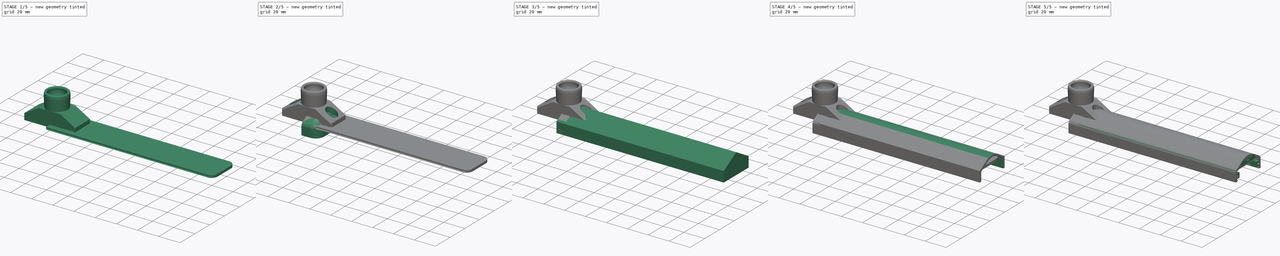
[diagram: build sequence overview — one tinted view per stage of 5, left to right]
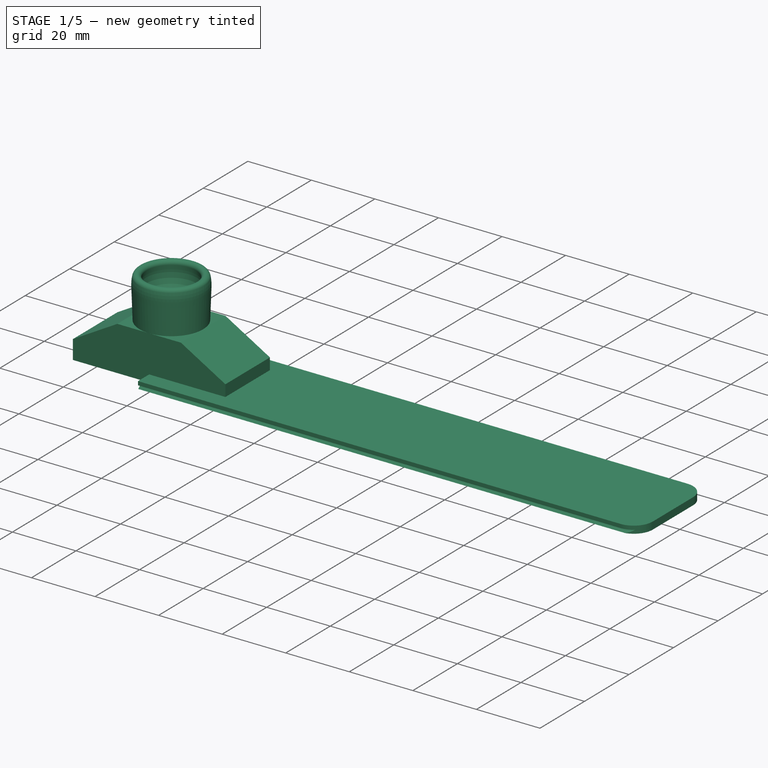
[diagram: stage 1 of 5 — iso view after this stage's code; geometry added in this stage tinted green]
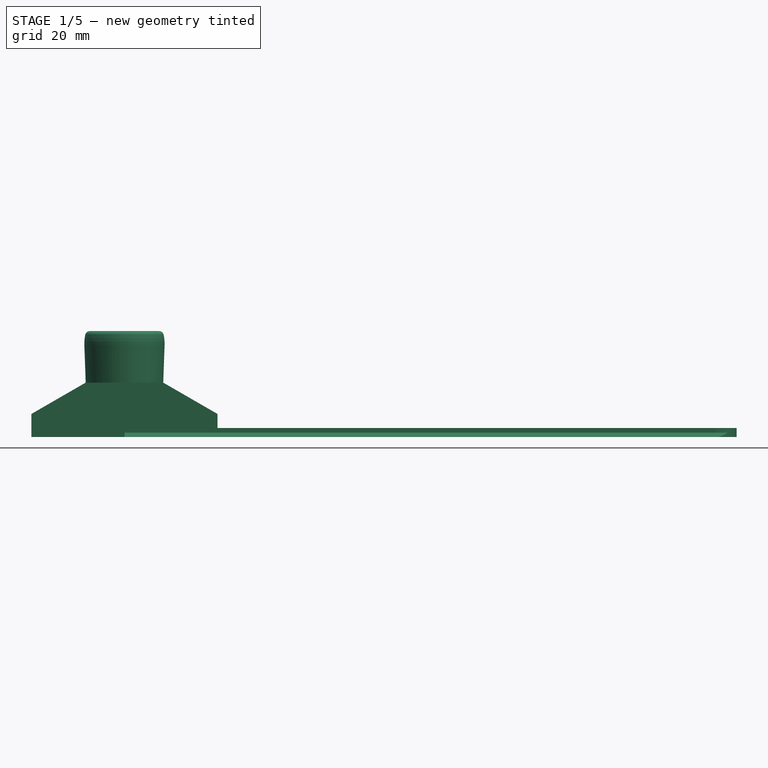
[diagram: stage 1 of 5 — front view after this stage's code; geometry added in this stage tinted green]
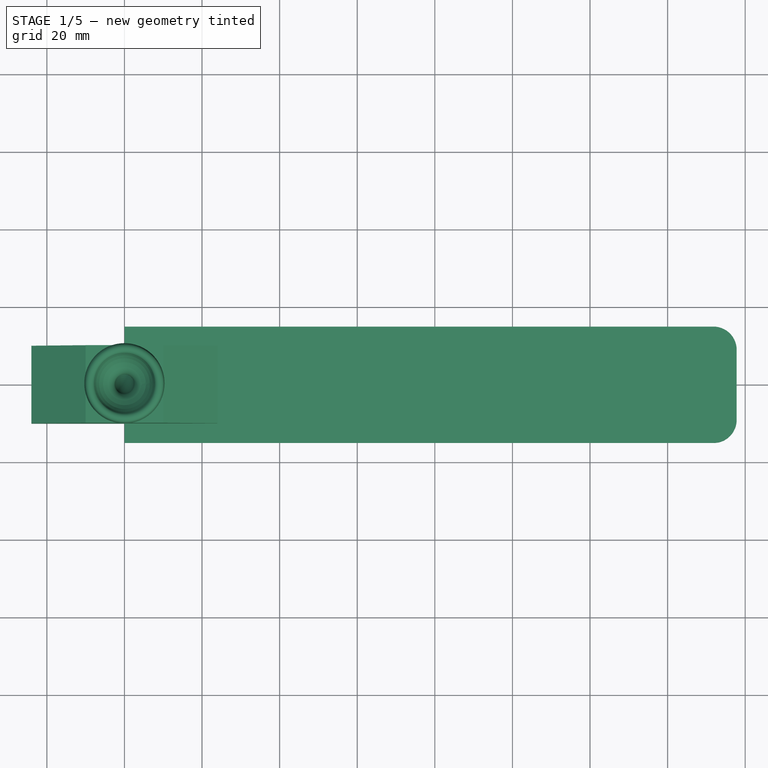
[diagram: stage 1 of 5 — top view after this stage's code; geometry added in this stage tinted green]
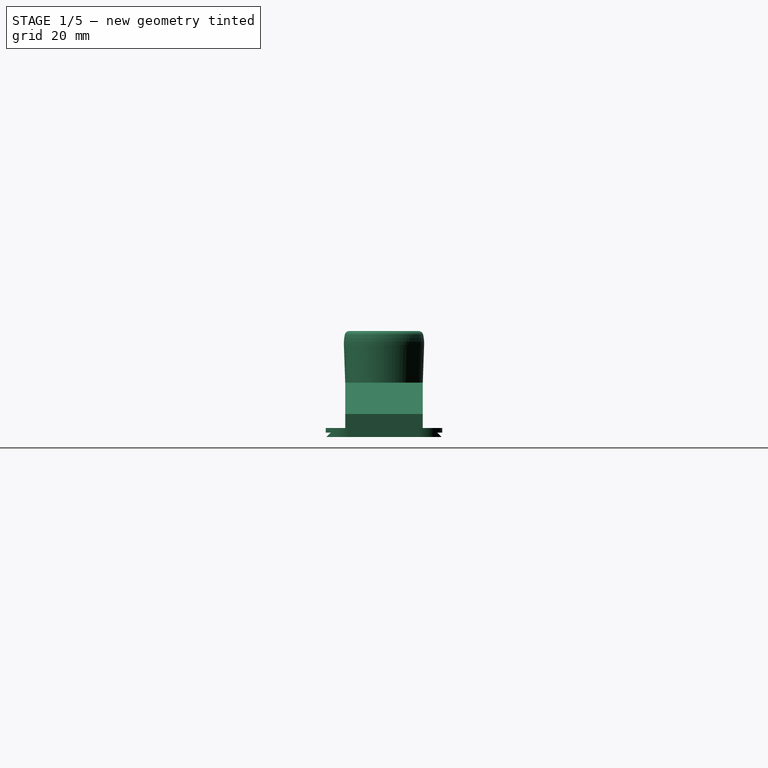
[diagram: stage 1 of 5 — right view after this stage's code; geometry added in this stage tinted green]
FCSTD DOCUMENT  (FreeCAD 0.21R33771 (Git))
Label: LED-Strip
License: Creative Commons Attribution 4.0
LicenseURL: https://creativecommons.org/licenses/by/4.0/
objects: Sketcher::SketchObject×20, PartDesign::Fillet×9, PartDesign::Pad×8, PartDesign::Pocket×5, PartDesign::Body×4, PartDesign::Hole×3, PartDesign::Mirrored×2, PartDesign::Revolution×2, PartDesign::Thickness×1, PartDesign::SubtractivePipe×1, PartDesign::Chamfer×1
note: 86 computed .brp shape members not serialized (recipe doc carries the construction recipe); baked Part::Feature solids carry a one-line shape summary decoded from their .brp

FEATURE [Sketcher::SketchObject] Sketch011
  FullyConstrained = true
  MapMode = 5
  Placement = pos=(0,0,0) rot=(1,0,0;1.5708rad)
  Support = -> [XZ_Plane002]
  sketch-geometry (6):
    g0: LineSegment StartX=-10 StartY=14 StartZ=0 EndX=10 EndY=14 EndZ=0
    g1: LineSegment StartX=10 StartY=14 StartZ=0 EndX=24 EndY=5.9171 EndZ=0
    g2: LineSegment StartX=24 StartY=5.9171 StartZ=0 EndX=24 EndY=0 EndZ=0
    g3: LineSegment StartX=24 StartY=0 StartZ=0 EndX=-24 EndY=0 EndZ=0
    g4: LineSegment StartX=-24 StartY=0 StartZ=0 EndX=-24 EndY=5.9171 EndZ=0
    g5: LineSegment StartX=-24 StartY=5.9171 StartZ=0 EndX=-10 EndY=14 EndZ=0
  constraints (17):
    c: Horizontal(g0)
    c: Coincident(g0,g1)
    c: Coincident(g1,g2)
    c: Vertical(g2)
    c: Coincident(g2,g3)
    c: PointOnObject(g3,g-1)
    c: Horizontal(g3)
    c: Coincident(g3,g4)
    c: Vertical(g4)
    c: Coincident(g4,g5)
    c: Coincident(g5,g0)
    c: Symmetric(g4,g1,g-2)
    c: Equal(g1,g5)
    c: DistanceX(g0,g0) = 20
    c: DistanceY(g3,g0) = 14
    c: Angle(g5,g1) = 2.0944
    c: DistanceX(g3,g3) = 48
FEATURE [PartDesign::Pad] Pad004
  Direction = (0,-1,2e-16)
  Length = 20
  Length2 = 10
  Midplane = true
  Placement = pos=(0,0,0) rot=(1,0,0;1.5708rad)
  Profile = -> Sketch011
  ReferenceAxis = -> Sketch011 [N_Axis]
  Refine = true
  Type = 0
FEATURE [Sketcher::SketchObject] Sketch012
  FullyConstrained = true
  MapMode = 5
  Placement = pos=(0,0,0) rot=(1,0,0;1.5708rad)
  sketch-geometry (11):
    g0: ArcOfCircle CenterX=-0.1 CenterY=24.0818 CenterZ=0 NormalX=0 NormalY=0 NormalZ=1 AngleXU=0 Radius=10.451 StartAngle=6.24773 EndAngle=6.50211
    g1: LineSegment StartX=-0.1 StartY=24.0818 StartZ=0 EndX=9.72073 EndY=27.6562 EndZ=0
    g2: ArcOfCircle CenterX=-0.1 CenterY=24.0818 CenterZ=0 NormalX=0 NormalY=0 NormalZ=1 AngleXU=0 Radius=8.05 StartAngle=5.29202 EndAngle=6.50211
    g3: LineSegment StartX=-0.1 StartY=24.0818 StartZ=0 EndX=9.5202 EndY=19.9983 EndZ=0
    g4: LineSegment StartX=7.9496 StartY=24.1618 StartZ=0 EndX=10.3496 EndY=24.1618 EndZ=0
    g5: ArcOfCircle CenterX=-0.1 CenterY=24.0818 CenterZ=0 NormalX=0 NormalY=0 NormalZ=1 AngleXU=0 Radius=10.451 StartAngle=0.218922 EndAngle=0.349066
    g6: ArcOfCircle CenterX=8.92971 CenterY=26.0908 CenterZ=0 NormalX=0 NormalY=0 NormalZ=1 AngleXU=0 Radius=1.2005 StartAngle=0.218922 EndAngle=3.36051
    g7: GeomPoint X=7.72921 Y=26.0908 Z=0
    g8: ArcOfCircle CenterX=6.5 CenterY=14 CenterZ=0 NormalX=0 NormalY=0 NormalZ=1 AngleXU=0 Radius=4 StartAngle=2.15043 EndAngle=3.14159
    g9: LineSegment StartX=2.5 StartY=14 StartZ=0 EndX=10 EndY=14 EndZ=0
    g10: LineSegment StartX=10.3444 StartY=23.7114 StartZ=0 EndX=10 EndY=14 EndZ=0
  constraints (33):
    c: Coincident(g1,g0)
    c: DistanceX(g0,g-1) = 0.1
    c: Coincident(g2,g0)
    c: Coincident(g3,g0)
    c: PointOnObject(g3,g0)
    c: Horizontal(g4)
    c: DistanceX(g4,g4) = 2.4
    c: Coincident(g5,g0)
    c: Coincident(g5,g0)
    c: Radius(g2) = 8.05
    c: Tangent(g2,g6) = 1.5708
    c: PointOnObject(g7,g6)
    c: Horizontal(g7,g6)
    c: DistanceX(g7,g4) = 0.220392
    c: Tangent(g6,g0) = -1.5708
    c: Coincident(g1,g5)
    c: DistanceY(g-1,g7) = 26.0908
    c: Tangent(g6,g1)
    c: Tangent(g2,g8) = 1.5708
    c: PointOnObject(g4,g2)
    c: DistanceY(g4,g6) = 1.929
    c: DistanceY(g0,g4) = 0.08
    c: Angle(g3,g4) = 0.401426
    c: Angle(g4,g1) = 0.349066
    c: DistanceX(g-1,g8) = 2.5
    c: Horizontal(g9)
    c: Radius(g8) = 4
    c: DistanceY(g-1,g9) = 14
    c: Coincident(g8,g9)
    c: Perpendicular(g8,g9)
    c: DistanceX(g-1,g9) = 10
    c: Tangent(g10,g0) = 1.5708
    c: Coincident(g9,g10)
FEATURE [PartDesign::Revolution] Revolution001
  Angle = 360
  Axis = (0,2e-16,1)
  Base = (0,0,0)
  BaseFeature = -> Pad004
  Placement = pos=(0,0,0) rot=(1,0,0;1.5708rad)
  Profile = -> Sketch012
  ReferenceAxis = -> Sketch012 [V_Axis]
  Refine = true
  Reversed = true
FEATURE [Sketcher::SketchObject] Sketch013
  AttachmentOffset = pos=(0,0,14) rot=(0,0,1;0rad)
  FullyConstrained = true
  MapMode = 5
  Placement = pos=(0,0,14) rot=(0,0,1;0rad)
  Support = -> [XY_Plane002]
  sketch-geometry (1):
    g0: Circle CenterX=0 CenterY=0 CenterZ=0 NormalX=0 NormalY=0 NormalZ=1 AngleXU=0 Radius=2.5
  constraints (2):
    c: Coincident(g0,g-1)
    c: Diameter(g0) = 5
FEATURE [Sketcher::SketchObject] Sketch014
  FullyConstrained = true
  MapMode = 5
  Placement = pos=(0,0,0) rot=(0.57735,0.57735,0.57735;2.0944rad)
  Support = -> [YZ_Plane002]
  sketch-geometry (1):
    g0: ArcOfCircle CenterX=11.5 CenterY=14 CenterZ=0 NormalX=0 NormalY=0 NormalZ=1 AngleXU=0 Radius=11.5 StartAngle=3.14159 EndAngle=4.71239
  constraints (6):
    c: PointOnObject(g0,g-2)
    c: DistanceY(g-1,g0) = 14
    c: Horizontal(g0,g0)
    c: Vertical(g0,g0)
    c: Radius(g0) = 11.5
    c: DistanceY(g-1,g0) = 2.5
FEATURE [PartDesign::SubtractivePipe] SubtractivePipe
  AuxilleryCurvelinear = true
  AuxillerySpineTangent = false
  BaseFeature = -> Revolution001
  Binormal = (0,0,0)
  Mode = 0
  Placement = pos=(0,0,0) rot=(1,0,0;1.5708rad)
  Profile = -> Sketch013
  Refine = true
  Spine = -> Sketch014
  SpineTangent = false
  Transformation = 0
  Transition = 0
FEATURE [PartDesign::Body] Body002  label="Foot"
  Group = -> [Sketch011,Pad004,Sketch012,Revolution001,Sketch013,Sketch014,SubtractivePipe,Sketch015,Hole002,Chamfer]
  Origin = -> Origin002
  Tip = -> Chamfer
FEATURE [Sketcher::SketchObject] Sketch019
  FullyConstrained = true
  MapMode = 5
  Support = -> [XY_Plane003]
  sketch-geometry (7):
    g0: LineSegment StartX=0 StartY=15 StartZ=0 EndX=151.8 EndY=15 EndZ=0
    g1: ArcOfCircle CenterX=151.8 CenterY=9 CenterZ=0 NormalX=0 NormalY=0 NormalZ=1 AngleXU=0 Radius=6 StartAngle=2e-16 EndAngle=1.5708
    g2: LineSegment StartX=157.8 StartY=9 StartZ=0 EndX=157.8 EndY=-9 EndZ=0
    g3: ArcOfCircle CenterX=151.8 CenterY=-9 CenterZ=0 NormalX=0 NormalY=0 NormalZ=1 AngleXU=0 Radius=6 StartAngle=4.71239 EndAngle=6.28319
    g4: LineSegment StartX=151.8 StartY=-15 StartZ=0 EndX=0 EndY=-15 EndZ=0
    g5: LineSegment StartX=0 StartY=-15 StartZ=0 EndX=0 EndY=15 EndZ=0
    g6: GeomPoint X=157.8 Y=-15 Z=0
  constraints (17):
    c: Tangent(g0,g1) = 1.5708
    c: Tangent(g1,g2) = 1.5708
    c: Tangent(g2,g3) = 1.5708
    c: Tangent(g3,g4) = 1.5708
    c: Horizontal(g0)
    c: Horizontal(g4)
    c: Vertical(g2)
    c: Equal(g1,g3)
    c: PointOnObject(g6,g2)
    c: PointOnObject(g6,g4)
    c: Coincident(g5,g0)
    c: Coincident(g4,g5)
    c: Symmetric(g4,g0,g-1)
    c: PointOnObject(g-1,g5)
    c: DistanceX(g0,g1) = 157.8
    c: Radius(g1) = 6
    c: DistanceY(g5,g5) = 30
FEATURE [PartDesign::Pad] Pad008
  Direction = (0,0,1)
  Length = 2.3
  Length2 = 10
  Profile = -> Sketch019
  ReferenceAxis = -> Sketch019 [N_Axis]
  Refine = true
  Type = 0
FEATURE [Sketcher::SketchObject] Sketch020
  FullyConstrained = true
  MapMode = 5
  Placement = pos=(0,0,0) rot=(0.57735,0.57735,0.57735;2.0944rad)
  Support = -> [YZ_Plane003]
  sketch-geometry (5):
    g0: LineSegment StartX=-15 StartY=-0.141421 StartZ=0 EndX=-13.7586 EndY=1.1 EndZ=0
    g1: LineSegment StartX=-13.7586 StartY=1.1 StartZ=0 EndX=-15 EndY=1.1 EndZ=0
    g2: LineSegment StartX=-15 StartY=1.1 StartZ=0 EndX=-15 EndY=-0.141421 EndZ=0
    g3: LineSegment StartX=-15 StartY=0 StartZ=0 EndX=-13.9 EndY=1.1 EndZ=0
    g4: LineSegment StartX=-13.9 StartY=1.1 StartZ=0 EndX=-13.8293 EndY=1.02929 EndZ=0
  constraints (16):
    c: Coincident(g0,g1)
    c: Coincident(g1,g2)
    c: Coincident(g2,g0)
    c: Horizontal(g1)
    c: Vertical(g2)
    c: Equal(g2,g1)
    c: DistanceX(g0,g-1) = 15
    c: PointOnObject(g3,g2)
    c: PointOnObject(g3,g1)
    c: PointOnObject(g3,g-1)
    c: Parallel(g0,g3)
    c: Coincident(g4,g3)
    c: PointOnObject(g4,g0)
    c: Perpendicular(g4,g3)
    c: Distance(g4) = 0.1
    c: DistanceY(g3,g1) = 1.1
FEATURE [PartDesign::Pocket] Pocket004
  BaseFeature = -> Pad008
  Direction = (-1,2e-16,-3e-16)
  Length = 5
  Length2 = 5
  Profile = -> Sketch020
  ReferenceAxis = -> Sketch020 [N_Axis]
  Refine = true
  Reversed = true
  Type = 1
FEATURE [PartDesign::Mirrored] Mirrored001
  BaseFeature = -> Pocket004
  MirrorPlane = -> Sketch020 [V_Axis]
  Originals = -> [Pocket004]
  Refine = true
FEATURE [PartDesign::Body] Body003  label="Diffuser"
  Group = -> [Sketch019,Pad008,Sketch020,Pocket004,Mirrored001]
  Origin = -> Origin003
  Placement = pos=(0,0,-8) rot=(0,0,1;3.14159rad)
  Tip = -> Mirrored001
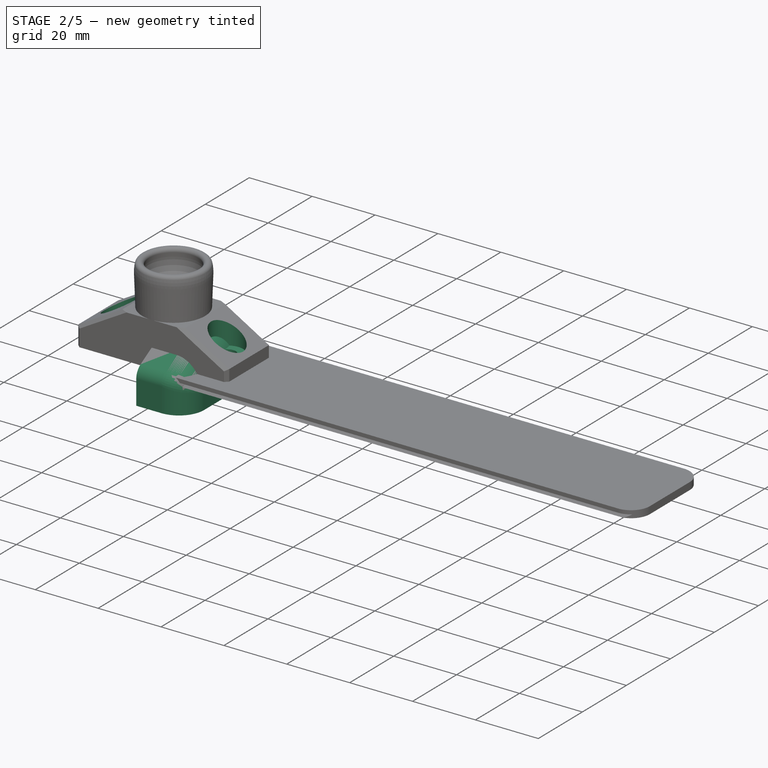
[diagram: stage 2 of 5 — iso view after this stage's code; geometry added in this stage tinted green]
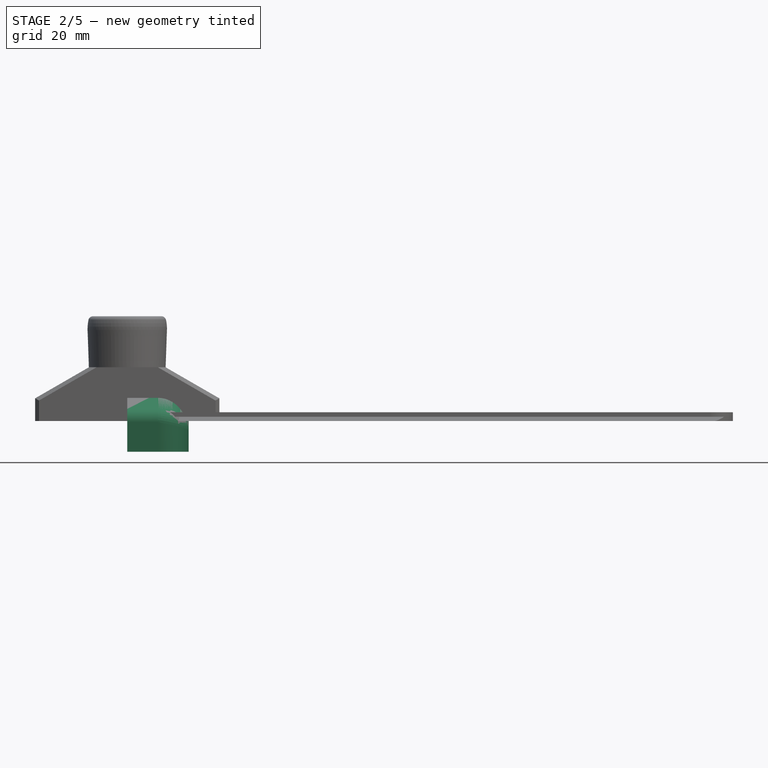
[diagram: stage 2 of 5 — front view after this stage's code; geometry added in this stage tinted green]
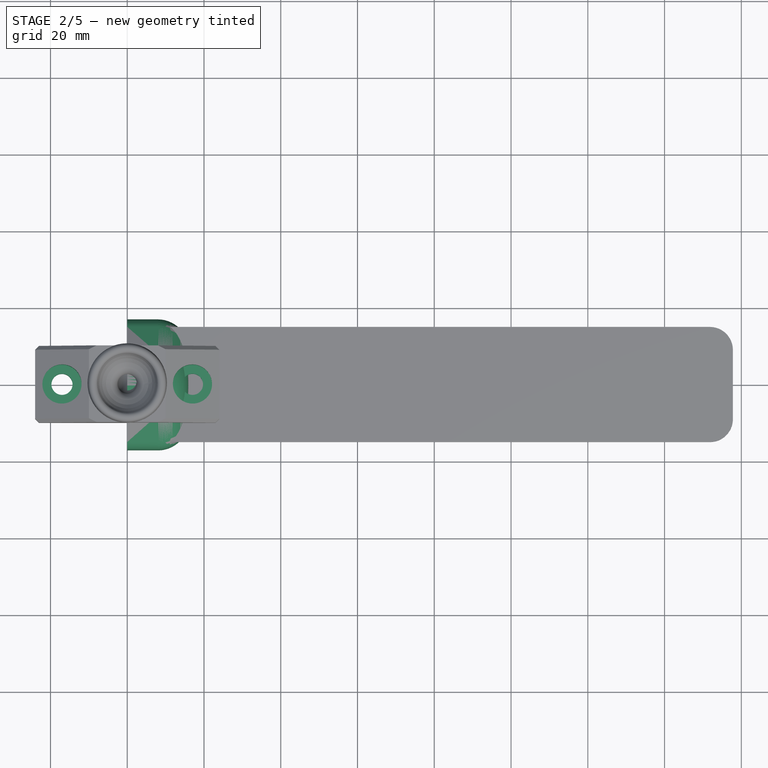
[diagram: stage 2 of 5 — top view after this stage's code; geometry added in this stage tinted green]
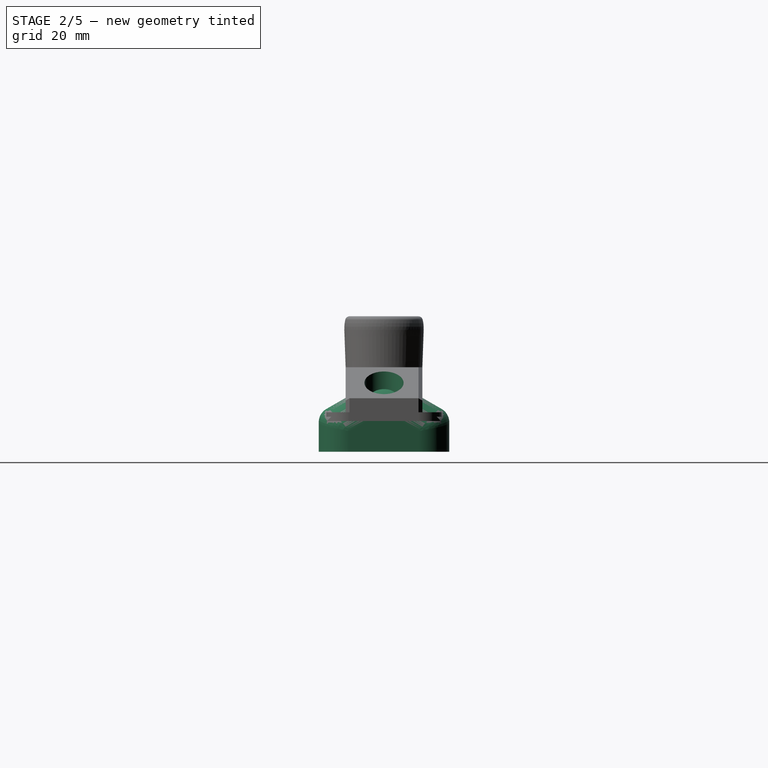
[diagram: stage 2 of 5 — right view after this stage's code; geometry added in this stage tinted green]
FEATURE [PartDesign::Body] Body  label="LED-Shade"
  Group = -> [Sketch,Pad,Sketch001,Pocket,Thickness,Fillet,Fillet001,Fillet002,Fillet003,Fillet004,Fillet005,Sketch002,Pad001,Mirrored,Sketch003,Pad002,Sketch004,Sketch005,Pocket001,Hole]
  Origin = -> Origin
  Placement = pos=(-160,0,0) rot=(0,0,1;0rad)
  Tip = -> Hole
FEATURE [Sketcher::SketchObject] Sketch006
  FullyConstrained = true
  MapMode = 5
  Placement = pos=(0,0,0) rot=(0.57735,0.57735,0.57735;2.0944rad)
  Support = -> [YZ_Plane001]
  sketch-geometry (8):
    g0: LineSegment StartX=-17 StartY=-8 StartZ=0 EndX=-17 EndY=-0.309147 EndZ=0
    g1: ArcOfCircle CenterX=-13 CenterY=-0.309147 CenterZ=0 NormalX=0 NormalY=0 NormalZ=1 AngleXU=0 Radius=4 StartAngle=2.0944 EndAngle=3.14159
    g2: LineSegment StartX=-15 StartY=3.15495 StartZ=0 EndX=-8 EndY=7.19641 EndZ=0
    g3: ArcOfCircle CenterX=0 CenterY=-6.66 CenterZ=0 NormalX=0 NormalY=0 NormalZ=1 AngleXU=0 Radius=16 StartAngle=1.0472 EndAngle=2.0944
    g4: LineSegment StartX=8 StartY=7.19641 StartZ=0 EndX=15 EndY=3.15495 EndZ=0
    g5: ArcOfCircle CenterX=13 CenterY=-0.309147 CenterZ=0 NormalX=0 NormalY=0 NormalZ=1 AngleXU=0 Radius=4 StartAngle=1e-16 EndAngle=1.0472
    g6: LineSegment StartX=17 StartY=-0.309147 StartZ=0 EndX=17 EndY=-8 EndZ=0
    g7: LineSegment StartX=17 StartY=-8 StartZ=0 EndX=-17 EndY=-8 EndZ=0
  constraints (20):
    c: Vertical(g0)
    c: Tangent(g0,g1) = 1.5708
    c: Tangent(g1,g2) = 1.5708
    c: Tangent(g2,g3) = 1.5708
    c: Tangent(g3,g4) = 1.5708
    c: Tangent(g4,g5) = 1.5708
    c: Tangent(g5,g6) = 1.5708
    c: Coincident(g6,g7)
    c: Coincident(g7,g0)
    c: Vertical(g6)
    c: Symmetric(g6,g0,g-2)
    c: Radius(g3) = 16
    c: PointOnObject(g3,g-2)
    c: Equal(g2,g4)
    c: Angle(g2,g4) = 2.0944
    c: Equal(g5,g1)
    c: Radius(g5) = 4
    c: DistanceY(g0,g-1) = 8
    c: DistanceX(g7,g7) = 34
    c: DistanceY(g0,g3) = 1.34
FEATURE [PartDesign::Pad] Pad003
  Direction = (1,-2e-16,3e-16)
  Length = 16
  Length2 = 10
  Placement = pos=(0,0,0) rot=(1,1,1;2.0944rad)
  Profile = -> Sketch006
  ReferenceAxis = -> Sketch006 [N_Axis]
  Refine = true
  Type = 0
FEATURE [Sketcher::SketchObject] Sketch007
  FullyConstrained = true
  MapMode = 5
  Placement = pos=(0,0,0) rot=(0.57735,0.57735,0.57735;2.0944rad)
  Support = -> [YZ_Plane001]
  sketch-geometry (7):
    g0: LineSegment StartX=10.5 StartY=-8 StartZ=0 EndX=-10.5 EndY=-8 EndZ=0
    g1: Circle CenterX=-14 CenterY=-3.3 CenterZ=0 NormalX=0 NormalY=0 NormalZ=1 AngleXU=0 Radius=3.05
    g2: Circle CenterX=14 CenterY=-3.3 CenterZ=0 NormalX=0 NormalY=0 NormalZ=1 AngleXU=0 Radius=3.05
    g3: Circle CenterX=0 CenterY=5.5 CenterZ=0 NormalX=0 NormalY=0 NormalZ=1 AngleXU=0 Radius=3.05
    g4: LineSegment StartX=-10.5 StartY=-8 StartZ=0 EndX=-10.5 EndY=2 EndZ=0
    g5: LineSegment StartX=-10.5 StartY=2 StartZ=0 EndX=10.5 EndY=2 EndZ=0
    g6: LineSegment StartX=10.5 StartY=2 StartZ=0 EndX=10.5 EndY=-8 EndZ=0
  constraints (19):
    c: Symmetric(g0,g0,g-2)
    c: DistanceY(g0,g-1) = 8
    c: DistanceX(g0,g0) = 21
    c: DistanceX(g1,g2) = 28
    c: Equal(g1,g2)
    c: Diameter(g1) = 6.1
    c: Symmetric(g1,g2,g-2)
    c: DistanceY(g2,g-1) = 3.3
    c: PointOnObject(g3,g-2)
    c: DistanceY(g-1,g3) = 5.5
    c: Equal(g2,g3)
    c: Coincident(g0,g4)
    c: Coincident(g4,g5)
    c: Horizontal(g5)
    c: Coincident(g5,g6)
    c: Coincident(g6,g0)
    c: Vertical(g6)
    c: Vertical(g4)
    c: DistanceY(g4,g4) = 10
FEATURE [PartDesign::Pocket] Pocket002
  BaseFeature = -> Pad003
  Direction = (-1,2e-16,-3e-16)
  Length = 13
  Length2 = 5
  Placement = pos=(0,0,0) rot=(1,1,1;2.0944rad)
  Profile = -> Sketch007
  ReferenceAxis = -> Sketch007 [N_Axis]
  Refine = true
  Reversed = true
  Type = 0
FEATURE [Sketcher::SketchObject] Sketch008
  AttachmentOffset = pos=(0,0,16) rot=(0,0,1;0rad)
  FullyConstrained = true
  MapMode = 5
  Placement = pos=(16,-3.6e-15,3.6e-15) rot=(0.57735,0.57735,0.57735;2.0944rad)
  Support = -> [YZ_Plane001]
  sketch-geometry (3):
    g0: Circle CenterX=-14 CenterY=-3.3 CenterZ=0 NormalX=0 NormalY=0 NormalZ=1 AngleXU=0 Radius=2.8
    g1: Circle CenterX=14 CenterY=-3.3 CenterZ=0 NormalX=0 NormalY=0 NormalZ=1 AngleXU=0 Radius=2.8
    g2: Circle CenterX=0 CenterY=5.5 CenterZ=0 NormalX=0 NormalY=0 NormalZ=1 AngleXU=0 Radius=2.8
  constraints (8):
    c: DistanceX(g0,g1) = 28
    c: Equal(g0,g1)
    c: Diameter(g0) = 5.6
    c: Symmetric(g0,g1,g-2)
    c: DistanceY(g1,g-1) = 3.3
    c: PointOnObject(g2,g-2)
    c: DistanceY(g-1,g2) = 5.5
    c: Equal(g1,g2)
FEATURE [PartDesign::Fillet] Fillet006
  Base = -> Pocket002 [Edge28,Edge32]
  BaseFeature = -> Pocket002
  Placement = pos=(0,0,0) rot=(1,1,1;2.0944rad)
  Radius = 3
  Refine = true
  SupportTransform = false
  UseAllEdges = false
FEATURE [PartDesign::Fillet] Fillet007
  Base = -> Fillet006 [Edge17]
  BaseFeature = -> Fillet006
  Placement = pos=(0,0,0) rot=(1,1,1;2.0944rad)
  Radius = 6
  Refine = true
  SupportTransform = false
  UseAllEdges = false
FEATURE [PartDesign::Fillet] Fillet008
  Base = -> Fillet007 [Edge36]
  BaseFeature = -> Fillet007
  Placement = pos=(0,0,0) rot=(1,1,1;2.0944rad)
  Radius = 8
  Refine = true
  SupportTransform = false
  UseAllEdges = false
FEATURE [Sketcher::SketchObject] Sketch015
  AttachmentOffset = pos=(0,0,14) rot=(0,0,1;0rad)
  FullyConstrained = true
  MapMode = 5
  Placement = pos=(0,0,14) rot=(0,0,1;0rad)
  Support = -> [XY_Plane002]
  sketch-geometry (2):
    g0: Circle CenterX=-17 CenterY=0 CenterZ=0 NormalX=0 NormalY=0 NormalZ=1 AngleXU=0 Radius=1.5
    g1: Circle CenterX=17 CenterY=0 CenterZ=0 NormalX=0 NormalY=0 NormalZ=1 AngleXU=0 Radius=1.5
  constraints (5):
    c: PointOnObject(g0,g-1)
    c: DistanceX(g0,g-1) = 17
    c: Diameter(g0) = 3
    c: Equal(g0,g1)
    c: Symmetric(g0,g1,g-2)
FEATURE [PartDesign::Hole] Hole002
  BaseFeature = -> SubtractivePipe
  CustomThreadClearance = 0
  Depth = 25
  DepthType = 0
  Diameter = 5.5
  DrillForDepth = false
  DrillPoint = 1
  DrillPointAngle = 118
  HoleCutCountersinkAngle = 90
  HoleCutCustomValues = false
  HoleCutDepth = 9
  HoleCutDiameter = 10.2
  HoleCutType = 1
  ModelThread = false
  Placement = pos=(0,0,0) rot=(1,0,0;1.5708rad)
  Profile = -> Sketch015
  Refine = true
  Tapered = false
  TaperedAngle = 90
  ThreadClass = 0
  ThreadDepth = 25
  ThreadDepthType = 0
  ThreadDirection = 0
  ThreadFit = 0
  ThreadSize = 13
  ThreadType = 1
  Threaded = false
  UseCustomThreadClearance = false
FEATURE [PartDesign::Body] Body001  label="ConnPiece"
  Group = -> [Sketch006,Pad003,Sketch007,Pocket002,Sketch008,Fillet006,Fillet007,Fillet008,Hole001,Sketch009,Revolution,Sketch010,Pocket003,Sketch017,Pad006,Sketch018,Pad007]
  Origin = -> Origin001
  Tip = -> Pad007
FEATURE [PartDesign::Chamfer] Chamfer
  Angle = 45
  Base = -> Hole002 [Edge4,Edge17,Edge6,Edge22,Edge7,Edge25,Edge31,Edge9]
  BaseFeature = -> Hole002
  ChamferType = 0
  FlipDirection = false
  Placement = pos=(0,0,0) rot=(1,0,0;1.5708rad)
  Refine = true
  Size = 1
  Size2 = 1
  SupportTransform = false
  UseAllEdges = false
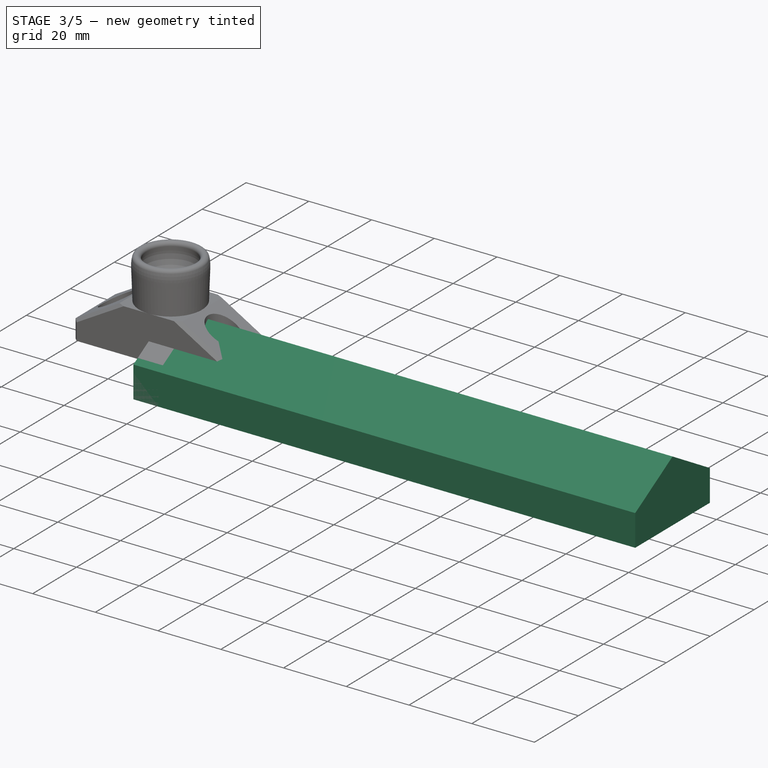
[diagram: stage 3 of 5 — iso view after this stage's code; geometry added in this stage tinted green]
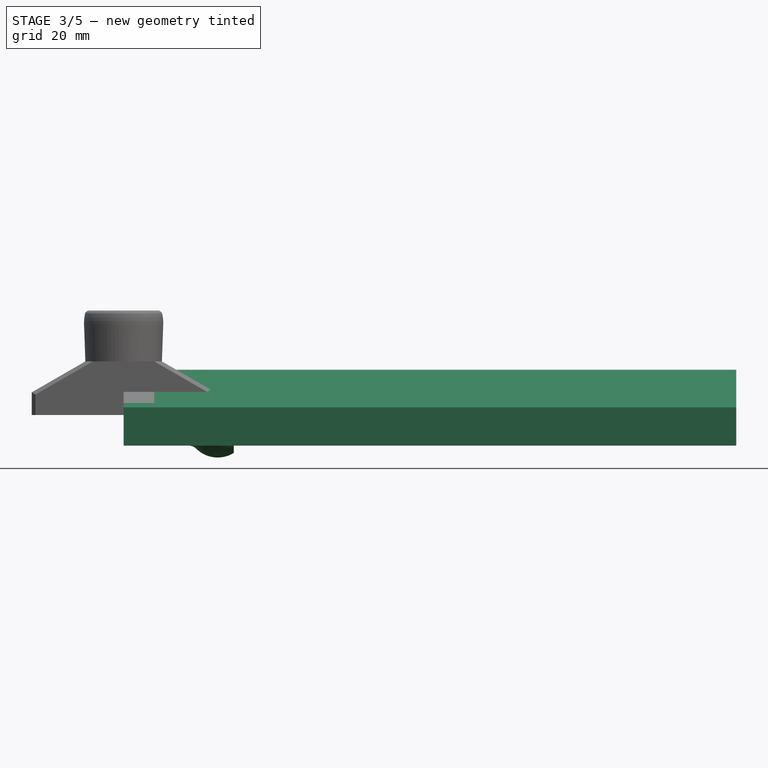
[diagram: stage 3 of 5 — front view after this stage's code; geometry added in this stage tinted green]
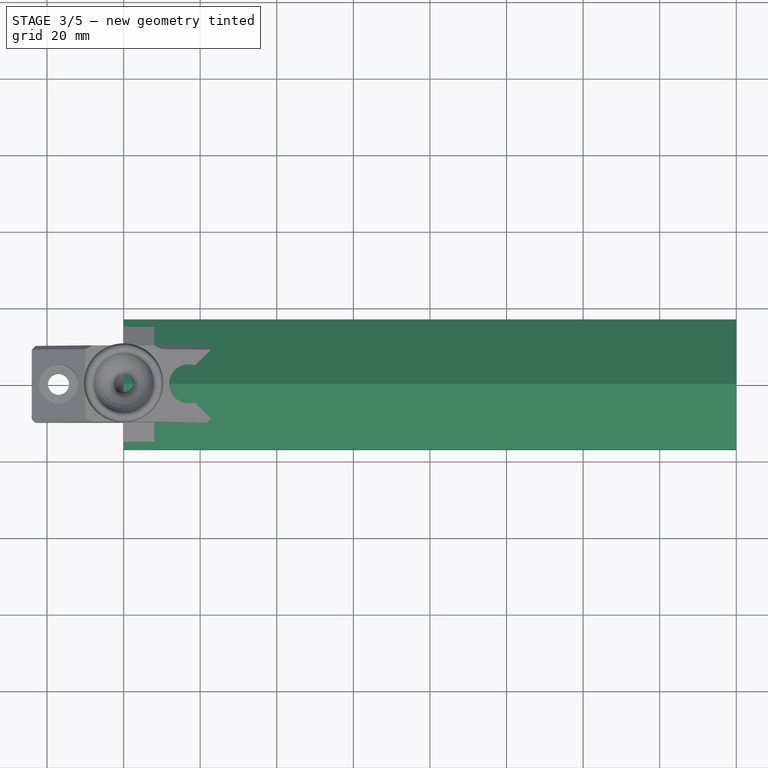
[diagram: stage 3 of 5 — top view after this stage's code; geometry added in this stage tinted green]
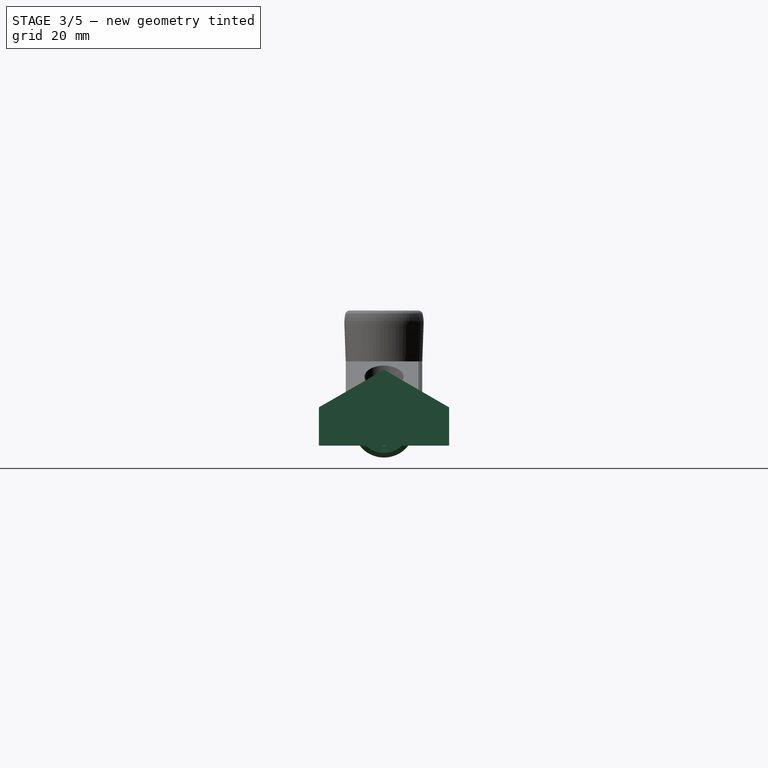
[diagram: stage 3 of 5 — right view after this stage's code; geometry added in this stage tinted green]
FEATURE [Sketcher::SketchObject] Sketch
  FullyConstrained = true
  MapMode = 5
  Placement = pos=(0,0,0) rot=(0.57735,0.57735,0.57735;2.0944rad)
  Support = -> [YZ_Plane]
  sketch-geometry (9):
    g0: LineSegment StartX=-17 StartY=-8 StartZ=0 EndX=-17 EndY=2 EndZ=0
    g1: LineSegment StartX=-17 StartY=2 StartZ=0 EndX=0 EndY=11.815 EndZ=0
    g2: LineSegment StartX=0 StartY=11.815 StartZ=0 EndX=17 EndY=2 EndZ=0
    g3: LineSegment StartX=17 StartY=2 StartZ=0 EndX=17 EndY=-8 EndZ=0
    g4: LineSegment StartX=17 StartY=-8 StartZ=0 EndX=-17 EndY=-8 EndZ=0
    g5: LineSegment StartX=-15 StartY=1 StartZ=0 EndX=15 EndY=1 EndZ=0
    g6: LineSegment StartX=15 StartY=1 StartZ=0 EndX=15 EndY=-1 EndZ=0
    g7: LineSegment StartX=15 StartY=-1 StartZ=0 EndX=-15 EndY=-1 EndZ=0
    g8: LineSegment StartX=-15 StartY=-1 StartZ=0 EndX=-15 EndY=1 EndZ=0
  constraints (25):
    c: Vertical(g0)
    c: Coincident(g0,g1)
    c: Coincident(g2,g3)
    c: Vertical(g3)
    c: Coincident(g3,g4)
    c: Coincident(g4,g0)
    c: Symmetric(g3,g0,g-2)
    c: Equal(g3,g0)
    c: Coincident(g5,g6)
    c: Coincident(g6,g7)
    c: Coincident(g7,g8)
    c: Coincident(g8,g5)
    c: Horizontal(g5)
    c: Vertical(g6)
    c: Vertical(g8)
    c: DistanceX(g7,g7) = 30
    c: DistanceY(g8,g8) = 2
    c: Symmetric(g7,g5,g-1)
    c: DistanceX(g4,g4) = 34
    c: DistanceY(g0,g-1) = 8
    c: Angle(g1,g2) = 2.0944
    c: DistanceY(g0,g0) = 10
    c: Coincident(g1,g2)
    c: PointOnObject(g1,g-2)
    c: Horizontal(g7)
FEATURE [PartDesign::Pad] Pad
  Direction = (1,-2e-16,3e-16)
  Length = 160
  Length2 = 10
  Placement = pos=(0,0,0) rot=(1,1,1;2.0944rad)
  Profile = -> Sketch
  ReferenceAxis = -> Sketch [N_Axis]
  Refine = true
  Type = 0
FEATURE [PartDesign::Hole] Hole001
  BaseFeature = -> Fillet008
  CustomThreadClearance = 0
  Depth = 83.5738
  DepthType = 1
  Diameter = 3.4
  DrillForDepth = false
  DrillPoint = 1
  DrillPointAngle = 118
  HoleCutCountersinkAngle = 90
  HoleCutCustomValues = false
  HoleCutDepth = 8
  HoleCutDiameter = 5.6
  HoleCutType = 1
  ModelThread = false
  Placement = pos=(0,0,0) rot=(1,1,1;2.0944rad)
  Profile = -> Sketch008
  Refine = true
  Tapered = false
  TaperedAngle = 90
  ThreadClass = 0
  ThreadDepth = 83.5738
  ThreadDepthType = 0
  ThreadDirection = 0
  ThreadFit = 0
  ThreadSize = 0
  ThreadType = 0
  Threaded = false
  UseCustomThreadClearance = false
FEATURE [Sketcher::SketchObject] Sketch009
  AttachmentOffset = pos=(0,0,-3.1) rot=(0,0,1;0rad)
  FullyConstrained = true
  MapMode = 5
  Placement = pos=(0,0,-3.1) rot=(0,0,1;0rad)
  Support = -> [XY_Plane001]
  sketch-geometry (10):
    g0: LineSegment StartX=15 StartY=2.5 StartZ=0 EndX=17.5083 EndY=2.5 EndZ=0
    g1: LineSegment StartX=15 StartY=4.9 StartZ=0 EndX=17 EndY=4.9 EndZ=0
    g2: ArcOfCircle CenterX=17 CenterY=7.7 CenterZ=0 NormalX=0 NormalY=0 NormalZ=1 AngleXU=0 Radius=2.8 StartAngle=4.71239 EndAngle=5.48947
    g3: ArcOfCircle CenterX=17.5083 CenterY=6.5 CenterZ=0 NormalX=0 NormalY=0 NormalZ=1 AngleXU=0 Radius=4 StartAngle=4.71239 EndAngle=5.53939
    g4: ArcOfCircle CenterX=24.573 CenterY=0 CenterZ=0 NormalX=0 NormalY=0 NormalZ=1 AngleXU=0 Radius=8 StartAngle=1.01808 EndAngle=2.34788
    g5: ArcOfCircle CenterX=24.573 CenterY=0 CenterZ=0 NormalX=0 NormalY=0 NormalZ=1 AngleXU=0 Radius=5.6 StartAngle=1.01808 EndAngle=2.3978
    g6: LineSegment StartX=28.773 StartY=6.80882 StartZ=0 EndX=28.773 EndY=4.98834 EndZ=0
    g7: LineSegment StartX=27.513 StartY=4.76617 StartZ=0 EndX=28.773 EndY=4.98834 EndZ=0
    g8: LineSegment StartX=27.513 StartY=4.76617 StartZ=0 EndX=28.773 EndY=6.80882 EndZ=0
    g9: LineSegment StartX=15 StartY=4.9 StartZ=0 EndX=15 EndY=2.5 EndZ=0
  constraints (28):
    c: Horizontal(g0)
    c: Horizontal(g1)
    c: Tangent(g2,g1) = -1.5708
    c: Tangent(g3,g0) = -1.5708
    c: Coincident(g5,g4)
    c: PointOnObject(g4,g-1)
    c: Radius(g4) = 8
    c: Tangent(g5,g3) = 1.5708
    c: Tangent(g4,g2) = 1.5708
    c: DistanceY(g0,g1) = 2.4
    c: Radius(g2) = 2.8
    c: Radius(g3) = 4
    c: Coincident(g6,g4)
    c: Coincident(g7,g5)
    c: Coincident(g7,g6)
    c: Vertical(g6)
    c: Angle(g6,g7) = 1.74533
    c: DistanceX(g4,g6) = 4.2
    c: Coincident(g8,g5)
    c: Coincident(g8,g4)
    c: Distance(g8) = 2.4
    c: Perpendicular(g5,g8)
    c: DistanceX(g1,g1) = 2
    c: Coincident(g9,g1)
    c: Coincident(g9,g0)
    c: Vertical(g9)
    c: DistanceY(g-1,g1) = 4.9
    c: DistanceX(g-1,g1) = 17
FEATURE [PartDesign::Revolution] Revolution
  Angle = 360
  Axis = (1,0,0)
  Base = (0,0,-3.1)
  BaseFeature = -> Hole001
  Placement = pos=(0,0,0) rot=(1,1,1;2.0944rad)
  Profile = -> Sketch009
  ReferenceAxis = -> Sketch009 [H_Axis]
  Refine = true
FEATURE [Sketcher::SketchObject] Sketch010
  FullyConstrained = true
  MapMode = 5
  Placement = pos=(0,0,0) rot=(0.57735,0.57735,0.57735;2.0944rad)
  Support = -> [YZ_Plane001]
  sketch-geometry (1):
    g0: Circle CenterX=0 CenterY=-3.1 CenterZ=0 NormalX=0 NormalY=0 NormalZ=1 AngleXU=0 Radius=2.5
  constraints (3):
    c: PointOnObject(g0,g-2)
    c: DistanceY(g0,g-1) = 3.1
    c: Diameter(g0) = 5
FEATURE [PartDesign::Pocket] Pocket003
  BaseFeature = -> Revolution
  Direction = (-1,2e-16,-3e-16)
  Length = 5
  Length2 = 5
  Placement = pos=(0,0,0) rot=(1,1,1;2.0944rad)
  Profile = -> Sketch010
  ReferenceAxis = -> Sketch010 [N_Axis]
  Refine = true
  Reversed = true
  Type = 1
FEATURE [Sketcher::SketchObject] Sketch017
  AttachmentOffset = pos=(0,0,-8) rot=(0,0,1;0rad)
  FullyConstrained = true
  MapMode = 5
  Placement = pos=(0,0,-8) rot=(0,0,1;0rad)
  Support = -> [XY_Plane001]
  sketch-geometry (7):
    g0: LineSegment StartX=0 StartY=11 StartZ=0 EndX=7.5 EndY=11 EndZ=0
    g1: ArcOfCircle CenterX=7.5 CenterY=5 CenterZ=0 NormalX=0 NormalY=0 NormalZ=1 AngleXU=0 Radius=6 StartAngle=1e-16 EndAngle=1.5708
    g2: LineSegment StartX=13.5 StartY=5 StartZ=0 EndX=13.5 EndY=-5 EndZ=0
    g3: ArcOfCircle CenterX=7.5 CenterY=-5 CenterZ=0 NormalX=0 NormalY=0 NormalZ=1 AngleXU=0 Radius=6 StartAngle=4.71239 EndAngle=6.28319
    g4: LineSegment StartX=7.5 StartY=-11 StartZ=0 EndX=0 EndY=-11 EndZ=0
    g5: GeomPoint X=13.5 Y=-11 Z=0
    g6: LineSegment StartX=0 StartY=11 StartZ=0 EndX=0 EndY=-11 EndZ=0
  constraints (17):
    c: Tangent(g0,g1) = 1.5708
    c: Tangent(g1,g2) = 1.5708
    c: Tangent(g2,g3) = 1.5708
    c: Tangent(g3,g4) = 1.5708
    c: Horizontal(g0)
    c: Horizontal(g4)
    c: Vertical(g2)
    c: Equal(g1,g3)
    c: PointOnObject(g5,g2)
    c: PointOnObject(g5,g4)
    c: Coincident(g6,g0)
    c: Coincident(g6,g4)
    c: PointOnObject(g0,g-2)
    c: Symmetric(g0,g4,g-1)
    c: DistanceX(g-1,g1) = 13.5
    c: DistanceY(g6,g6) = 22
    c: Radius(g3) = 6
FEATURE [PartDesign::Pad] Pad006
  BaseFeature = -> Pocket003
  Direction = (0,0,1)
  Length = 1
  Length2 = 10
  Placement = pos=(0,0,0) rot=(1,1,1;2.0944rad)
  Profile = -> Sketch017
  ReferenceAxis = -> Sketch017 [N_Axis]
  Refine = true
  Type = 0
FEATURE [Sketcher::SketchObject] Sketch018
  AttachmentOffset = pos=(0,0,13) rot=(0,0,1;0rad)
  FullyConstrained = true
  MapMode = 5
  Placement = pos=(13,-2.9e-15,2.9e-15) rot=(0.57735,0.57735,0.57735;2.0944rad)
  Support = -> [YZ_Plane001]
  sketch-geometry (1):
    g0: Circle CenterX=0 CenterY=-3.1 CenterZ=0 NormalX=0 NormalY=0 NormalZ=1 AngleXU=0 Radius=3
  constraints (3):
    c: PointOnObject(g0,g-2)
    c: DistanceY(g0,g-1) = 3.1
    c: Diameter(g0) = 6
FEATURE [PartDesign::Pad] Pad007
  BaseFeature = -> Pad006
  Direction = (1,-2e-16,3e-16)
  Length = 0.2
  Length2 = 10
  Placement = pos=(0,0,0) rot=(1,1,1;2.0944rad)
  Profile = -> Sketch018
  ReferenceAxis = -> Sketch018 [N_Axis]
  Refine = true
  Type = 0
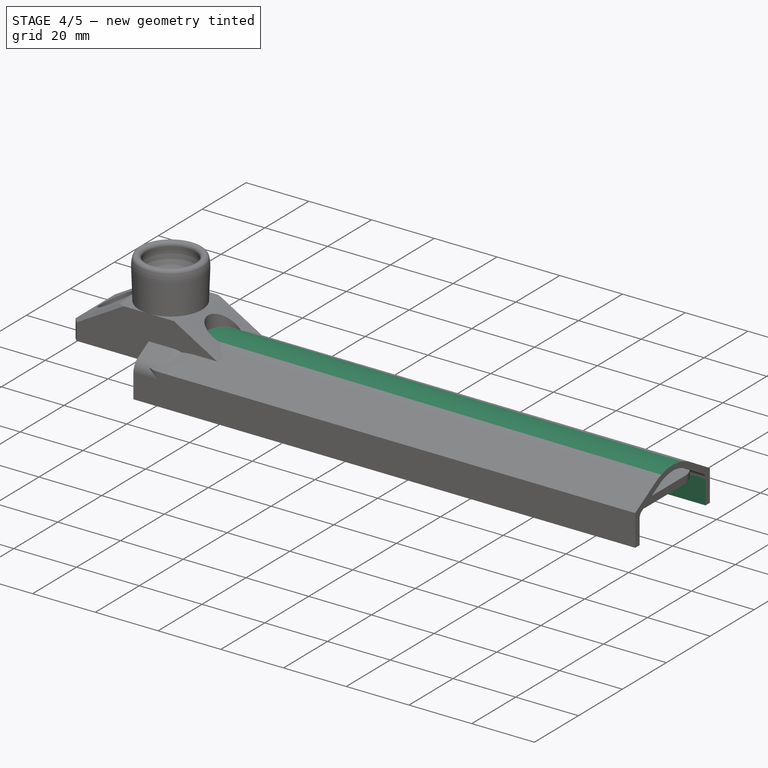
[diagram: stage 4 of 5 — iso view after this stage's code; geometry added in this stage tinted green]
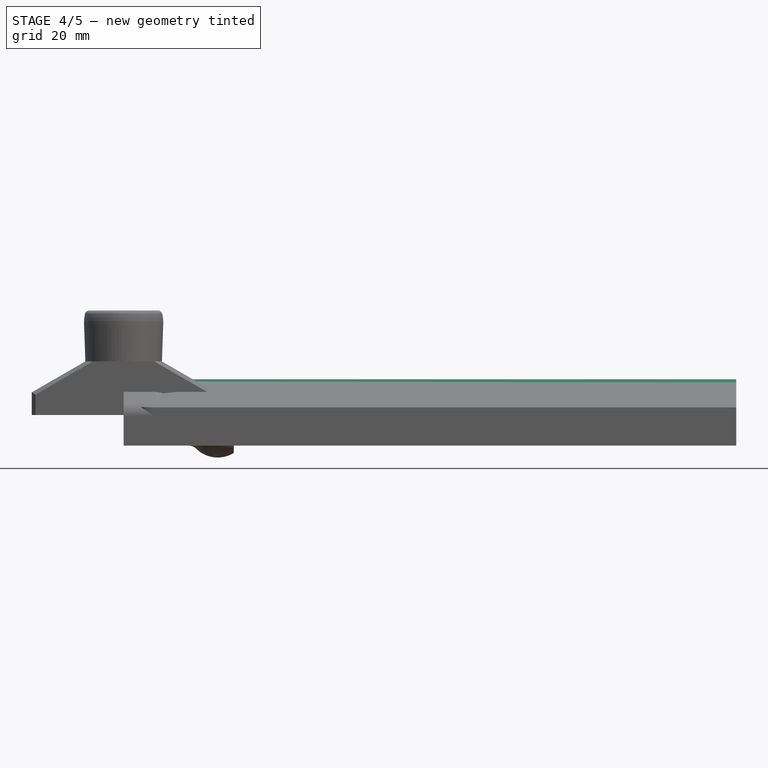
[diagram: stage 4 of 5 — front view after this stage's code; geometry added in this stage tinted green]
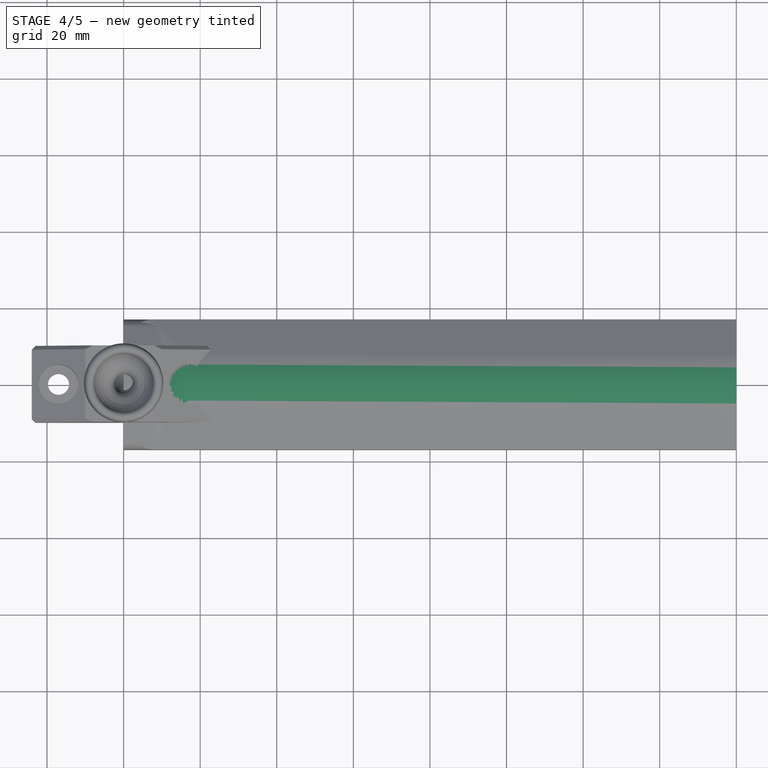
[diagram: stage 4 of 5 — top view after this stage's code; geometry added in this stage tinted green]
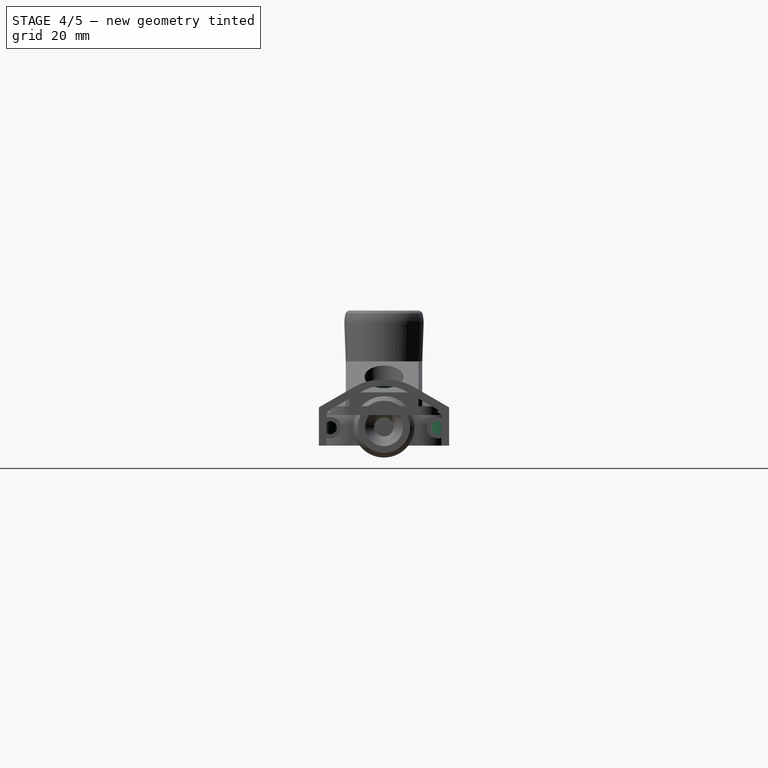
[diagram: stage 4 of 5 — right view after this stage's code; geometry added in this stage tinted green]
FEATURE [Sketcher::SketchObject] Sketch001
  FullyConstrained = true
  MapMode = 5
  Placement = pos=(0,0,0) rot=(1,0,0;1.5708rad)
  Support = -> [XZ_Plane]
  sketch-geometry (3):
    g0: LineSegment StartX=-3.464 StartY=0 StartZ=0 EndX=17.3206 EndY=12 EndZ=0
    g1: LineSegment StartX=17.3206 StartY=12 StartZ=0 EndX=-3.464 EndY=12 EndZ=0
    g2: LineSegment StartX=-3.464 StartY=12 StartZ=0 EndX=-3.464 EndY=0 EndZ=0
  constraints (9):
    c: Coincident(g0,g1)
    c: Horizontal(g1)
    c: Coincident(g1,g2)
    c: Coincident(g2,g0)
    c: Vertical(g2)
    c: PointOnObject(g0,g-1)
    c: Angle(g0,g2) = 1.0472
    c: DistanceX(g1,g-1) = 3.464
    c: DistanceY(g2,g2) = 12
FEATURE [PartDesign::Pocket] Pocket
  BaseFeature = -> Pad
  Direction = (0,1,-2e-16)
  Length = 5
  Length2 = 5
  Midplane = true
  Placement = pos=(0,0,0) rot=(1,1,1;2.0944rad)
  Profile = -> Sketch001
  ReferenceAxis = -> Sketch001 [N_Axis]
  Refine = true
  Type = 1
FEATURE [PartDesign::Thickness] Thickness
  Base = -> Pocket [Face6,Face5]
  BaseFeature = -> Pocket
  Intersection = false
  Join = 0
  Mode = 0
  Refine = true
  Reversed = true
  SupportTransform = false
  Value = 2
FEATURE [PartDesign::Fillet] Fillet
  Base = -> Thickness [Edge33,Edge28]
  BaseFeature = -> Thickness
  Radius = 6
  Refine = true
  SupportTransform = false
  UseAllEdges = false
FEATURE [PartDesign::Fillet] Fillet001
  Base = -> Fillet [Edge39,Edge37,Edge38]
  BaseFeature = -> Fillet
  Radius = 12
  Refine = true
  SupportTransform = false
  UseAllEdges = false
FEATURE [PartDesign::Fillet] Fillet002
  Base = -> Fillet001 [Edge44]
  BaseFeature = -> Fillet001
  Radius = 2
  Refine = true
  SupportTransform = false
  UseAllEdges = false
FEATURE [PartDesign::Fillet] Fillet003
  Base = -> Fillet002 [Edge46,Edge42]
  BaseFeature = -> Fillet002
  Radius = 8
  Refine = true
  SupportTransform = false
  UseAllEdges = false
FEATURE [PartDesign::Fillet] Fillet004
  Base = -> Fillet003 [Edge50,Edge48,Edge49]
  BaseFeature = -> Fillet003
  Radius = 16
  Refine = true
  SupportTransform = false
  UseAllEdges = false
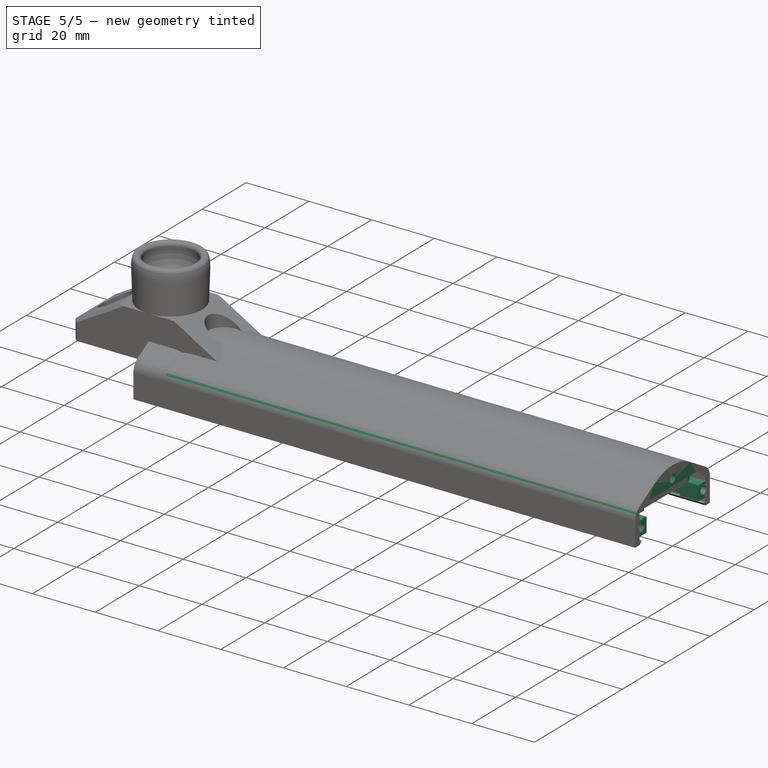
[diagram: stage 5 of 5 — iso view after this stage's code; geometry added in this stage tinted green]
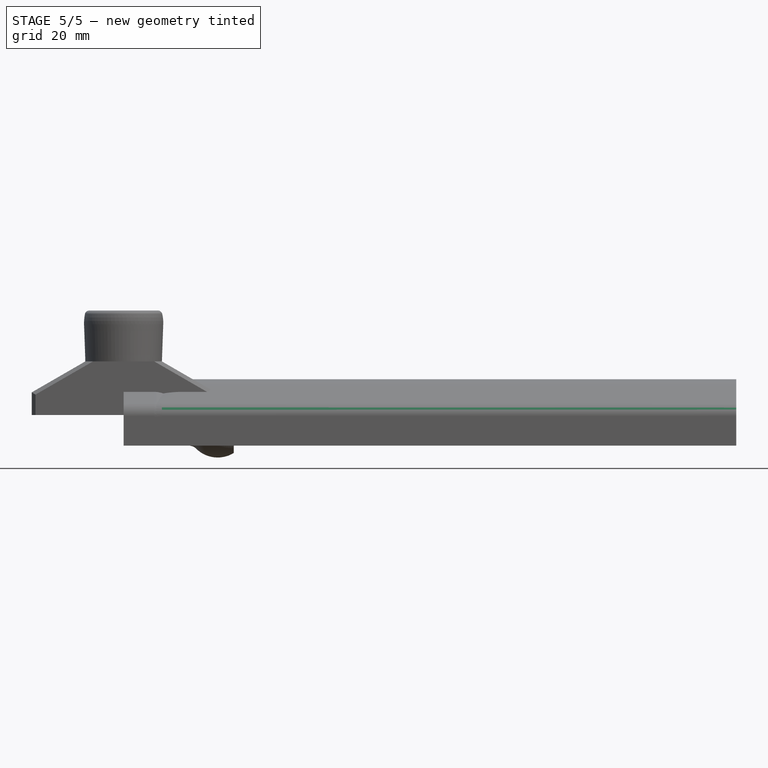
[diagram: stage 5 of 5 — front view after this stage's code; geometry added in this stage tinted green]
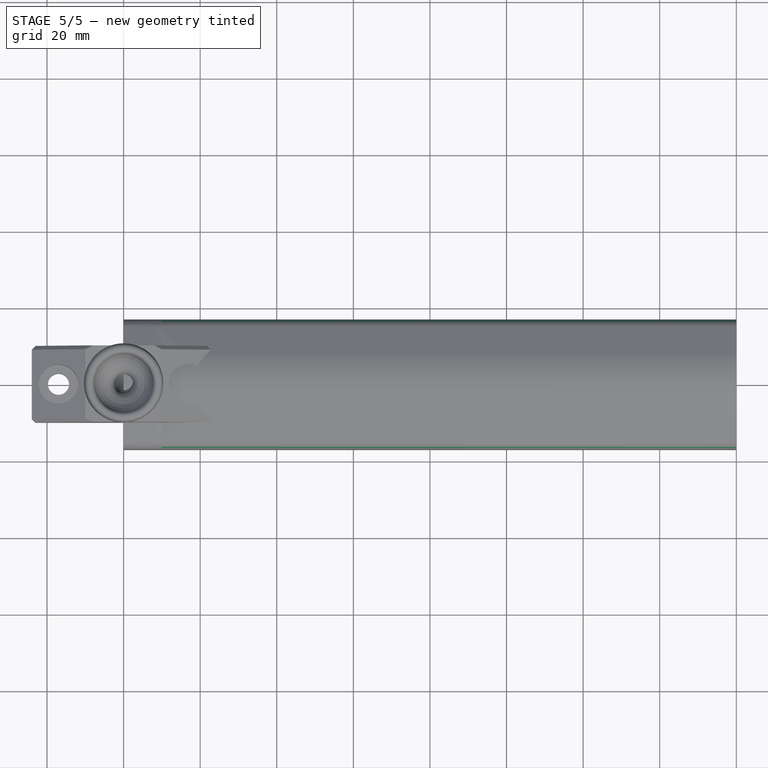
[diagram: stage 5 of 5 — top view after this stage's code; geometry added in this stage tinted green]
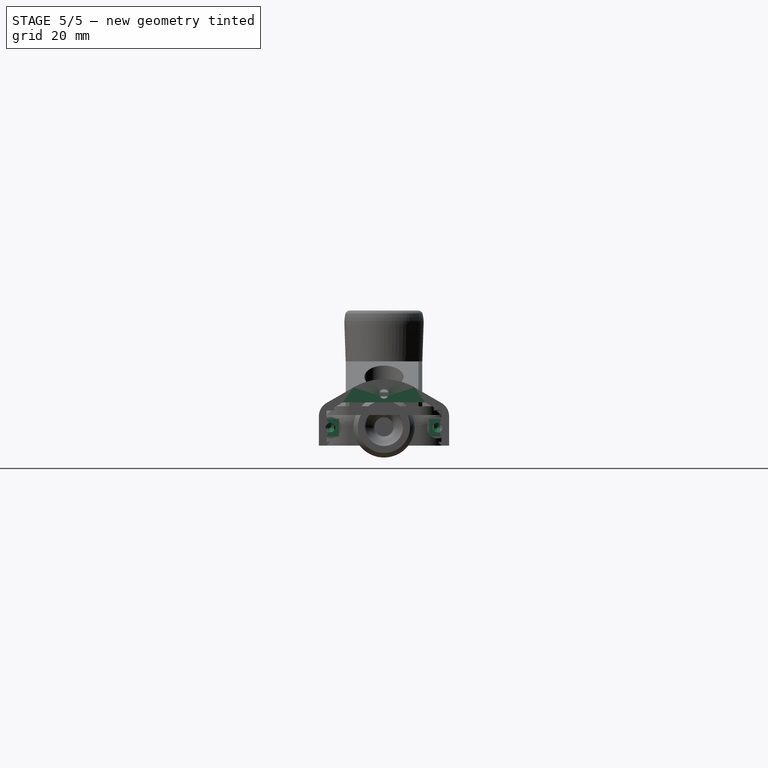
[diagram: stage 5 of 5 — right view after this stage's code; geometry added in this stage tinted green]
FEATURE [PartDesign::Fillet] Fillet005
  Base = -> Fillet004 [Edge49]
  BaseFeature = -> Fillet004
  Radius = 4
  Refine = true
  SupportTransform = false
  UseAllEdges = false
FEATURE [Sketcher::SketchObject] Sketch002
  AttachmentOffset = pos=(0,0,160) rot=(0,0,1;0rad)
  FullyConstrained = true
  MapMode = 5
  Placement = pos=(160,-3.55e-14,3.55e-14) rot=(0.57735,0.57735,0.57735;2.0944rad)
  Support = -> [YZ_Plane]
  expr: .AttachmentOffset.Base.z = Pad.Length
  sketch-geometry (13):
    g0: LineSegment StartX=-15.5 StartY=2.25662 StartZ=0 EndX=-15.5 EndY=-8 EndZ=0
    g1: LineSegment StartX=-13 StartY=-5.6 StartZ=0 EndX=-13 EndY=-1 EndZ=0
    g2: LineSegment StartX=-13 StartY=-1 StartZ=0 EndX=-15 EndY=-1 EndZ=0
    g3: LineSegment StartX=-15 StartY=-1 StartZ=0 EndX=-15 EndY=1.2 EndZ=0
    g4: LineSegment StartX=-15 StartY=1.2 StartZ=0 EndX=-13 EndY=1.2 EndZ=0
    g5: LineSegment StartX=-13 StartY=1.2 StartZ=0 EndX=-13 EndY=3.7 EndZ=0
    g6: LineSegment StartX=-15.5 StartY=0.1 StartZ=0 EndX=-13 EndY=0.1 EndZ=0
    g7: LineSegment StartX=-15.5 StartY=2.25662 StartZ=0 EndX=-13 EndY=3.7 EndZ=0
    g8: LineSegment StartX=-13 StartY=-5.6 StartZ=0 EndX=-15 EndY=-5.6 EndZ=0
    g9: LineSegment StartX=-15 StartY=-5.6 StartZ=0 EndX=-15 EndY=-7 EndZ=0
    g10: LineSegment StartX=-15 StartY=-7 StartZ=0 EndX=-14 EndY=-7 EndZ=0
    g11: LineSegment StartX=-14 StartY=-7 StartZ=0 EndX=-15 EndY=-8 EndZ=0
    g12: LineSegment StartX=-15 StartY=-8 StartZ=0 EndX=-15.5 EndY=-8 EndZ=0
  constraints (39):
    c: Coincident(g1,g2)
    c: Coincident(g2,g3)
    c: Vertical(g3)
    c: Coincident(g3,g4)
    c: Coincident(g4,g5)
    c: Vertical(g5)
    c: Vertical(g0)
    c: Vertical(g1)
    c: Horizontal(g4)
    c: Horizontal(g2)
    c: Vertical(g1,g4)
    c: DistanceY(g1,g4) = 2.2
    c: DistanceX(g3,g5) = 2
    c: DistanceX(g2,g-1) = 15
    c: PointOnObject(g6,g0)
    c: Vertical(g1,g6)
    c: Symmetric(g1,g4,g6)
    c: Coincident(g7,g0)
    c: Coincident(g7,g5)
    c: Angle(g0,g7) = 2.0944
    c: DistanceY(g5,g5) = 2.5
    c: DistanceX(g0,g5) = 2.5
    c: Coincident(g1,g8)
    c: Horizontal(g8)
    c: Coincident(g8,g9)
    c: Vertical(g9)
    c: Coincident(g9,g10)
    c: Horizontal(g10)
    c: Coincident(g11,g10)
    c: Vertical(g11,g9)
    c: Vertical(g2,g8)
    c: Angle(g10,g11) = 0.785398
    c: Coincident(g12,g11)
    c: Coincident(g12,g0)
    c: Horizontal(g12)
    c: DistanceY(g0,g-1) = 8
    c: DistanceY(g11,g9) = 1
    c: DistanceY(g10,g1) = 1.4
    c: DistanceY(g1,g1) = 4.6
FEATURE [PartDesign::Pad] Pad001
  BaseFeature = -> Fillet005
  Direction = (1,-2e-16,3e-16)
  Length = 152
  Length2 = 10
  Profile = -> Sketch002
  ReferenceAxis = -> Sketch002 [N_Axis]
  Refine = true
  Reversed = true
  Type = 0
FEATURE [PartDesign::Mirrored] Mirrored
  BaseFeature = -> Pad001
  MirrorPlane = -> Sketch002 [V_Axis]
  Originals = -> [Pad001]
  Refine = true
FEATURE [Sketcher::SketchObject] Sketch003
  AttachmentOffset = pos=(0,0,160) rot=(0,0,1;0rad)
  FullyConstrained = true
  MapMode = 5
  Placement = pos=(160,-3.55e-14,3.55e-14) rot=(0.57735,0.57735,0.57735;2.0944rad)
  Support = -> [YZ_Plane]
  expr: .AttachmentOffset.Base.z = Pad.Length
  sketch-geometry (16):
    g0: LineSegment StartX=-16 StartY=-1 StartZ=0 EndX=-11.8 EndY=-1 EndZ=0
    g1: LineSegment StartX=-11.8 StartY=-1 StartZ=0 EndX=-11.8 EndY=-5.6 EndZ=0
    g2: LineSegment StartX=-11.8 StartY=-5.6 StartZ=0 EndX=-16 EndY=-5.6 EndZ=0
    g3: LineSegment StartX=-16 StartY=-5.6 StartZ=0 EndX=-16 EndY=-1 EndZ=0
    g4: LineSegment StartX=16 StartY=-1 StartZ=0 EndX=11.8 EndY=-1 EndZ=0
    g5: LineSegment StartX=11.8 StartY=-1 StartZ=0 EndX=11.8 EndY=-5.6 EndZ=0
    g6: LineSegment StartX=11.8 StartY=-5.6 StartZ=0 EndX=16 EndY=-5.6 EndZ=0
    g7: LineSegment StartX=16 StartY=-5.6 StartZ=0 EndX=16 EndY=-1 EndZ=0
    g8: LineSegment StartX=-10.8364 StartY=3.3 StartZ=0 EndX=10.8364 EndY=3.3 EndZ=0
    g9: ArcOfCircle CenterX=0 CenterY=-4.3 CenterZ=0 NormalX=0 NormalY=0 NormalZ=1 AngleXU=0 Radius=12 StartAngle=1.0472 EndAngle=2.0944
    g10: GeomPoint X=0 Y=7.7 Z=0
    g11: LineSegment StartX=-10.8364 StartY=3.3 StartZ=0 EndX=-6 EndY=6.0923 EndZ=0
    g12: LineSegment StartX=10.8364 StartY=3.3 StartZ=0 EndX=6 EndY=6.0923 EndZ=0
    g13: Circle CenterX=-14 CenterY=-3.3 CenterZ=0 NormalX=0 NormalY=0 NormalZ=1 AngleXU=0 Radius=1.25
    g14: Circle CenterX=14 CenterY=-3.3 CenterZ=0 NormalX=0 NormalY=0 NormalZ=1 AngleXU=0 Radius=1.25
    g15: Circle CenterX=0 CenterY=5.5 CenterZ=0 NormalX=0 NormalY=0 NormalZ=1 AngleXU=0 Radius=1.25
  constraints (43):
    c: Coincident(g0,g1)
    c: Coincident(g1,g2)
    c: Coincident(g2,g3)
    c: Coincident(g3,g0)
    c: Horizontal(g0)
    c: Horizontal(g2)
    c: Vertical(g1)
    c: Vertical(g3)
    c: Coincident(g4,g5)
    c: Coincident(g5,g6)
    c: Coincident(g6,g7)
    c: Coincident(g7,g4)
    c: Horizontal(g4)
    c: Horizontal(g6)
    c: Vertical(g5)
    c: Vertical(g7)
    c: Symmetric(g2,g6,g-2)
    c: DistanceY(g2,g-1) = 5.6
    c: DistanceX(g2,g6) = 32
    c: Equal(g2,g6)
    c: DistanceY(g7,g7) = 4.6
    c: Equal(g5,g1)
    c: Symmetric(g8,g8,g-2)
    c: Radius(g9) = 12
    c: PointOnObject(g10,g9)
    c: PointOnObject(g10,g-2)
    c: DistanceY(g-1,g10) = 7.7
    c: DistanceY(g8,g10) = 4.4
    c: PointOnObject(g9,g-2)
    c: Coincident(g8,g12)
    c: Coincident(g8,g11)
    c: Angle(g11,g12) = 2.0944
    c: Tangent(g12,g9) = -1.5708
    c: Tangent(g11,g9) = 1.5708
    c: PointOnObject(g15,g-2)
    c: Equal(g13,g14)
    c: Equal(g14,g15)
    c: Diameter(g14) = 2.5
    c: DistanceY(g15,g10) = 2.2
    c: DistanceY(g14,g-1) = 3.3
    c: Symmetric(g14,g13,g-2)
    c: DistanceX(g13,g14) = 28
    c: DistanceX(g1,g5) = 23.6
FEATURE [PartDesign::Pad] Pad002
  BaseFeature = -> Mirrored
  Direction = (1,-2e-16,3e-16)
  Length = 6
  Length2 = 10
  Profile = -> Sketch003
  ReferenceAxis = -> Sketch003 [N_Axis]
  Refine = true
  Reversed = true
  Type = 0
FEATURE [Sketcher::SketchObject] Sketch004
  AttachmentOffset = pos=(0,0,160) rot=(0,0,1;0rad)
  ExternalGeometry = -> [Sketch003]
  FullyConstrained = true
  MapMode = 5
  Placement = pos=(160,-3.55e-14,3.55e-14) rot=(0.57735,0.57735,0.57735;2.0944rad)
  Support = -> [YZ_Plane]
  expr: .AttachmentOffset.Base.z = Pad.Length
  sketch-geometry (2):
    g0: Circle CenterX=-14 CenterY=-3.3 CenterZ=0 NormalX=0 NormalY=0 NormalZ=1 AngleXU=0 Radius=1.25
    g1: Circle CenterX=14 CenterY=-3.3 CenterZ=0 NormalX=0 NormalY=0 NormalZ=1 AngleXU=0 Radius=1.25
  constraints (4):
    c: Coincident(g0,g-3)
    c: Coincident(g1,g-4)
    c: Equal(g0,g-3)
    c: Equal(g1,g-4)
FEATURE [Sketcher::SketchObject] Sketch005
  AttachmentOffset = pos=(0,0,160) rot=(0,0,1;0rad)
  FullyConstrained = true
  MapMode = 5
  Placement = pos=(160,-3.55e-14,3.55e-14) rot=(0.57735,0.57735,0.57735;2.0944rad)
  Support = -> [YZ_Plane]
  expr: .AttachmentOffset.Base.z = Pad.Length
  sketch-geometry (4):
    g0: LineSegment StartX=-15 StartY=-1 StartZ=0 EndX=15 EndY=-1 EndZ=0
    g1: LineSegment StartX=15 StartY=-1 StartZ=0 EndX=15 EndY=1.2 EndZ=0
    g2: LineSegment StartX=15 StartY=1.2 StartZ=0 EndX=-15 EndY=1.2 EndZ=0
    g3: LineSegment StartX=-15 StartY=1.2 StartZ=0 EndX=-15 EndY=-1 EndZ=0
  constraints (11):
    c: Coincident(g0,g1)
    c: Coincident(g1,g2)
    c: Coincident(g2,g3)
    c: Coincident(g3,g0)
    c: Horizontal(g2)
    c: Vertical(g1)
    c: Vertical(g3)
    c: Symmetric(g0,g0,g-2)
    c: DistanceY(g3,g3) = 2.2
    c: DistanceX(g0,g0) = 30
    c: DistanceY(g0,g-1) = 1
FEATURE [PartDesign::Pocket] Pocket001
  BaseFeature = -> Pad002
  Direction = (-1,2e-16,-3e-16)
  Length = 152
  Length2 = 5
  Profile = -> Sketch005
  ReferenceAxis = -> Sketch005 [N_Axis]
  Refine = true
  Type = 0
FEATURE [PartDesign::Hole] Hole
  BaseFeature = -> Pocket001
  CustomThreadClearance = 0
  Depth = 10
  DepthType = 0
  Diameter = 2.5
  DrillForDepth = false
  DrillPoint = 1
  DrillPointAngle = 118
  HoleCutCountersinkAngle = 90
  HoleCutCustomValues = false
  HoleCutDepth = 0
  HoleCutDiameter = 6.1
  HoleCutType = 0
  ModelThread = false
  Profile = -> Sketch004
  Refine = true
  Tapered = false
  TaperedAngle = 90
  ThreadClass = 0
  ThreadDepth = 10
  ThreadDepthType = 0
  ThreadDirection = 0
  ThreadFit = 0
  ThreadSize = 0
  ThreadType = 0
  Threaded = false
  UseCustomThreadClearance = false
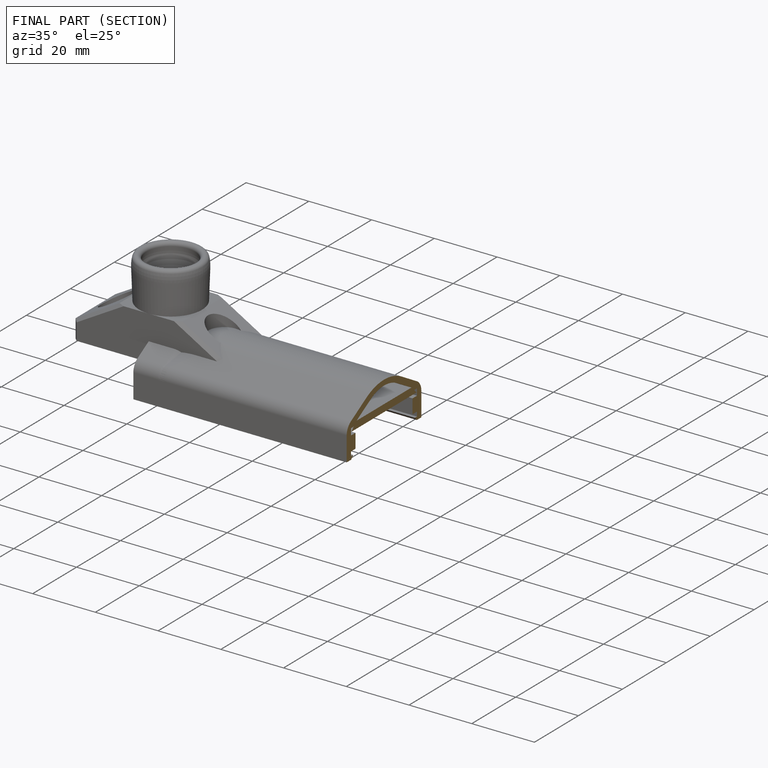
[diagram: finished part — half-section view (interior)]
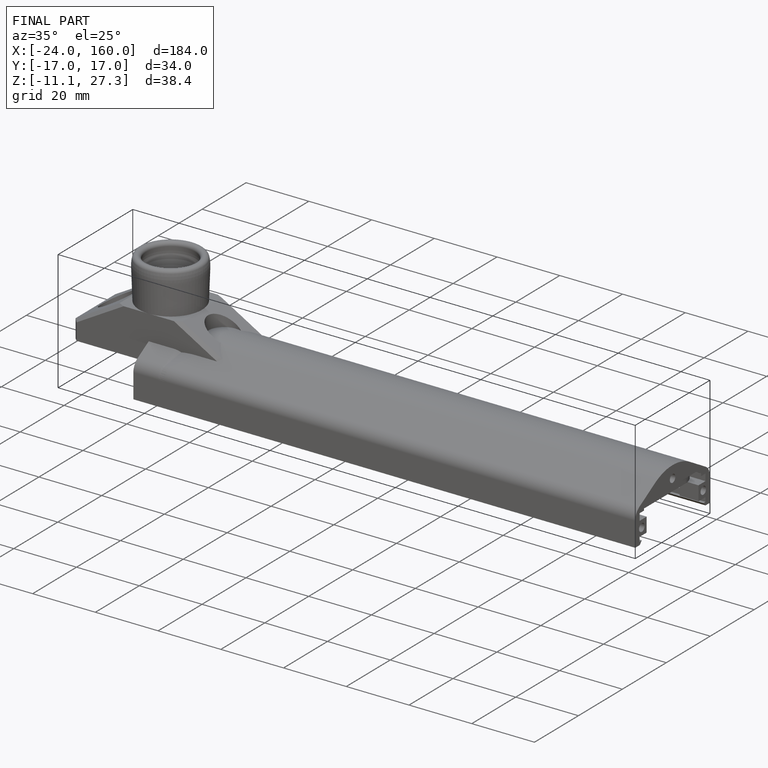
[diagram: finished part — iso view with bounding-box wireframe]
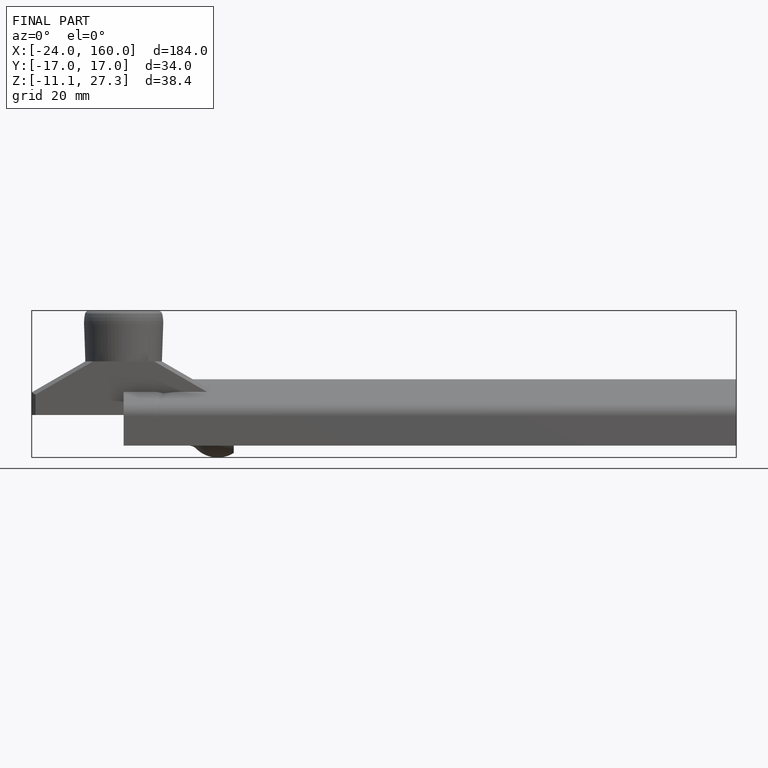
[diagram: finished part — front view with bounding-box wireframe]
